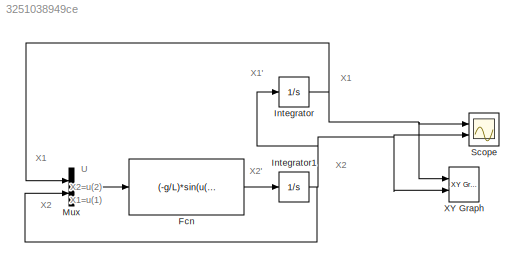
MODEL slx_3251038949ce
KIND model
BLOCK [Fcn] Fcn
  Expr = (-g/L)*sin(u(1))-(k/m)*u(2)
BLOCK [Integrator] Integrator
  InitialCondition = Ci1
  Ports = [1, 1]
BLOCK [Integrator] Integrator1
  InitialCondition = Ci2
  Ports = [1, 1]
BLOCK [Mux] Mux
  DisplayOption = bar
  Inputs = 2
  Ports = [2, 1]
BLOCK [Scope] Scope
  DataFormat = StructureWithTime
  Floating = off
  NumInputPorts = 2
  Ports = [2]
  SampleTime = 0
  ShowLegends = off
  YMax = 5~5
  YMin = -5~-5
BLOCK [Reference] XY Graph  REF=simulink/Sinks/XY Graph
  Ports = [2]
  SourceBlock = simulink/Sinks/XY Graph
  SourceType = XY scope.
  st = -1
  xmax = 3
  xmin = -1
  ymax = 3
  ymin = -3
ANNOTATION (root): U
ANNOTATION (root): X1
ANNOTATION (root): X1'
ANNOTATION (root): X1=u(1) X2=u(2)
ANNOTATION (root): X2
ANNOTATION (root): X2'
LINE Fcn:1 -> Integrator1:1
NET Integrator1:1 -> Integrator:1, Mux:2, Scope:2, XY Graph:2
NET Integrator:1 -> Mux:1, Scope:1, XY Graph:1
LINE Mux:1 -> Fcn:1
note: NET lines group one-source signal fan-out (src -> all destinations, sorted); 1:1 wires keep LINE
